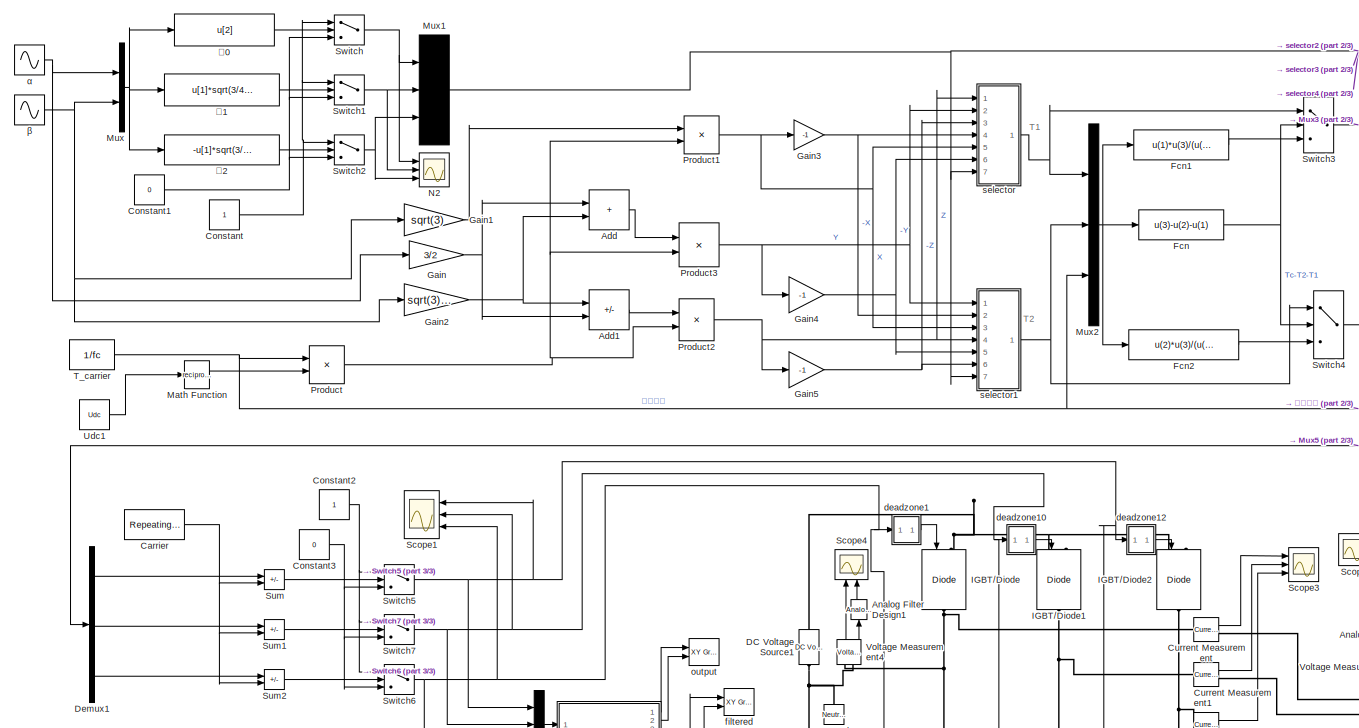
[diagram: root canvas - part 1/3, central region]
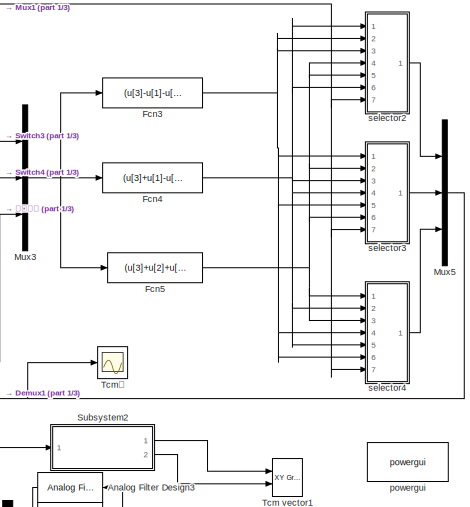
[diagram: root canvas - part 2/3, top right region]
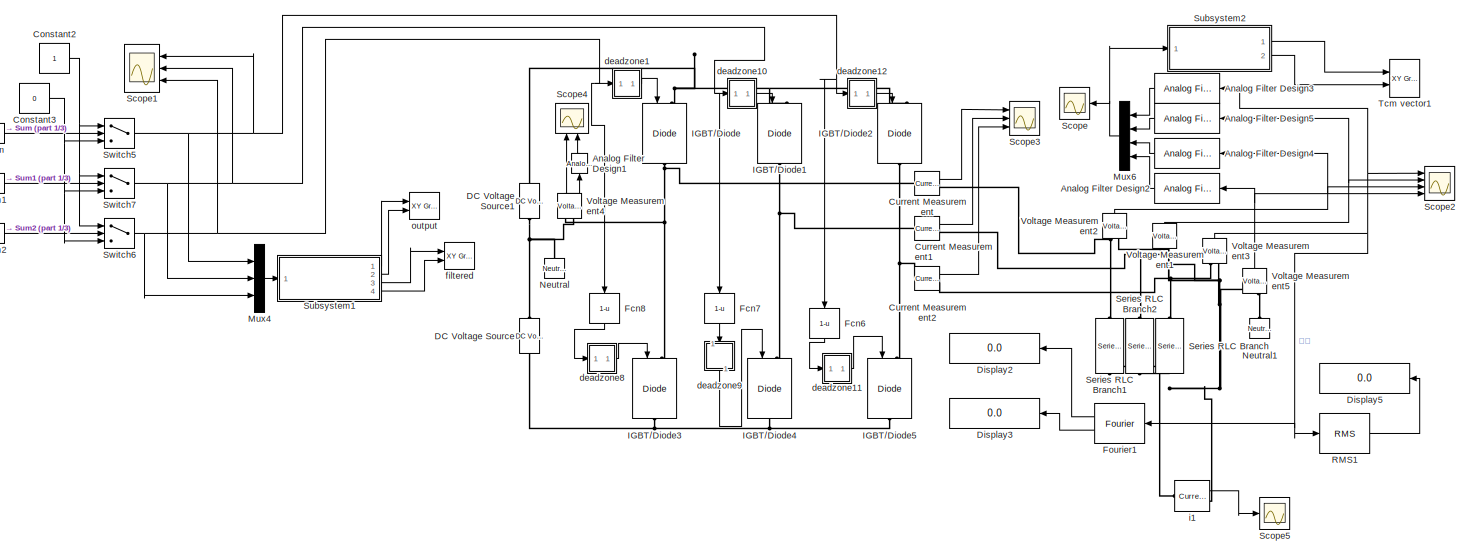
[diagram: root canvas - part 3/3, full width, bottom band]
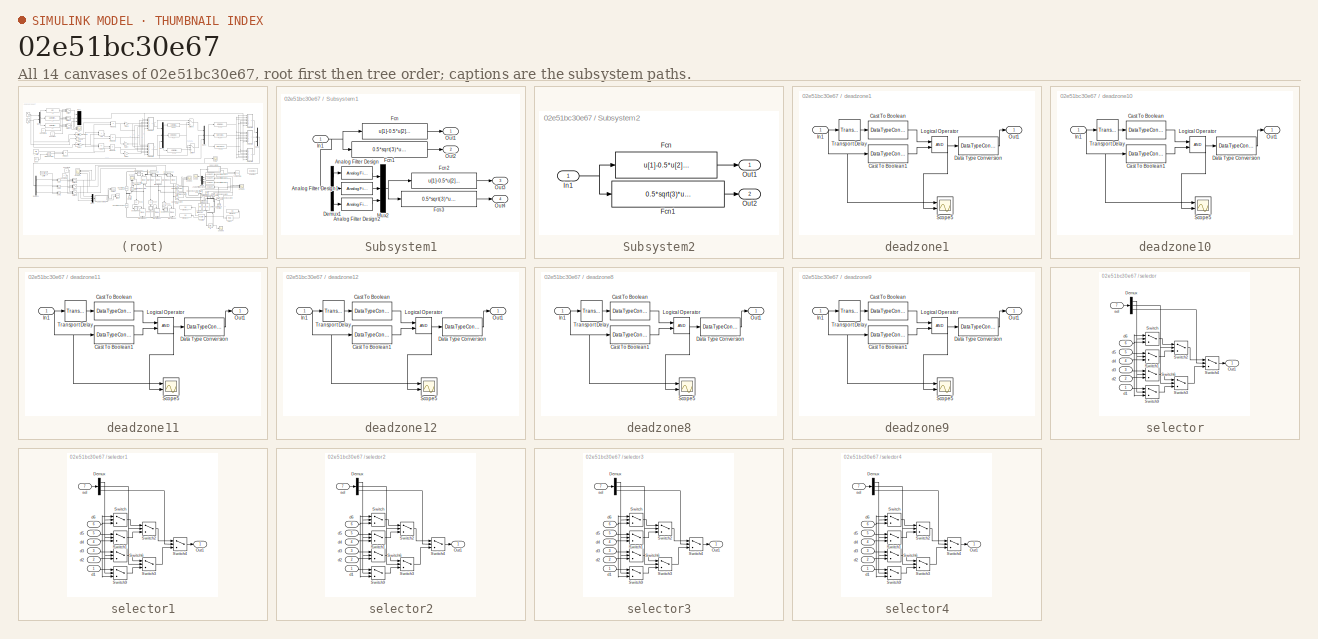
[diagram: thumbnail index - all 14 canvases of the model, root first then tree order]
MODEL slx_02e51bc30e67
KIND model
CONFIG AbsTol = auto
CONFIG EnableMultiTasking = off
CONFIG FixedStep = 10e-6
CONFIG InitFcn = Ualf=250;\nUbet=250;\nf=50;\nfc=5000;\nUdc=500;\nT_dead=20e-4\n
CONFIG MaxStep = 0.00001
CONFIG MinStep = auto
CONFIG RelTol = 1e-3
CONFIG SampleTimeConstraint = Unconstrained
CONFIG Solver = ode1
CONFIG SolverName = ode1
CONFIG StartTime = 0.0
CONFIG StopTime = 0.05
BLOCK [Sum] Add
  IconShape = rectangular
  Ports = [2, 1]
BLOCK [Sum] Add1
  IconShape = rectangular
  Inputs = +-
  Ports = [2, 1]
BLOCK [Reference] Analog Filter Design1  REF=dsparch4/Analog
Filter Design
  NameLocation = left
  Ports = [1, 1]
  SourceBlock = dsparch4/Analog\nFilter Design
  SourceProductBaseCode = DS
  SourceType = Analog Filter Design
BLOCK [Reference] Analog Filter Design2  REF=dsparch4/Analog
Filter Design
  Ports = [1, 1]
  SourceBlock = dsparch4/Analog\nFilter Design
  SourceProductBaseCode = DS
  SourceType = Analog Filter Design
BLOCK [Reference] Analog Filter Design3  REF=dsparch4/Analog
Filter Design
  Ports = [1, 1]
  SourceBlock = dsparch4/Analog\nFilter Design
  SourceProductBaseCode = DS
  SourceType = Analog Filter Design
BLOCK [Reference] Analog Filter Design4  REF=dsparch4/Analog
Filter Design
  Ports = [1, 1]
  SourceBlock = dsparch4/Analog\nFilter Design
  SourceProductBaseCode = DS
  SourceType = Analog Filter Design
BLOCK [Reference] Analog Filter Design5  REF=dsparch4/Analog
Filter Design
  Ports = [1, 1]
  SourceBlock = dsparch4/Analog\nFilter Design
  SourceProductBaseCode = DS
  SourceType = Analog Filter Design
BLOCK [Reference] Carrier   REF=simulink/Sources/Repeating
Sequence
  Ports = [0, 1]
  SourceBlock = simulink/Sources/Repeating\nSequence
  SourceProductBaseCode = SL
  SourceType = Repeating table
BLOCK [Constant] Constant
BLOCK [Constant] Constant1
  Value = 0
BLOCK [Constant] Constant2
BLOCK [Constant] Constant3
  Value = 0
BLOCK [Reference] Current Measurement  REF=powerlib/Measurements/Current Measurement
  Ports = [0, 1, 0, 0, 0, 1, 1]
  SourceBlock = powerlib/Measurements/Current Measurement
  SourceProductBaseCode = PS
  SourceType = Current Measurement
  UserDataPersistent = on
BLOCK [Reference] Current Measurement1  REF=powerlib/Measurements/Current Measurement
  Ports = [0, 1, 0, 0, 0, 1, 1]
  SourceBlock = powerlib/Measurements/Current Measurement
  SourceProductBaseCode = PS
  SourceType = Current Measurement
  UserDataPersistent = on
BLOCK [Reference] Current Measurement2  REF=powerlib/Measurements/Current Measurement
  Ports = [0, 1, 0, 0, 0, 1, 1]
  SourceBlock = powerlib/Measurements/Current Measurement
  SourceProductBaseCode = PS
  SourceType = Current Measurement
  UserDataPersistent = on
BLOCK [Reference] DC Voltage Source  REF=powerlib/Electrical
Sources/DC Voltage Source
  NameLocation = right
  Ports = [0, 0, 0, 0, 0, 1, 1]
  SourceBlock = powerlib/Electrical\nSources/DC Voltage Source
  SourceProductBaseCode = PS
  SourceType = DC Voltage Source
BLOCK [Reference] DC Voltage Source1  REF=powerlib/Electrical
Sources/DC Voltage Source
  NameLocation = right
  Ports = [0, 0, 0, 0, 0, 1, 1]
  SourceBlock = powerlib/Electrical\nSources/DC Voltage Source
  SourceProductBaseCode = PS
  SourceType = DC Voltage Source
BLOCK [Demux] Demux1
  Outputs = 3
  Ports = [1, 3]
BLOCK [Display] Display2
  Decimation = 1
  Ports = [1]
BLOCK [Display] Display3
  Decimation = 1
  Ports = [1]
BLOCK [Display] Display5
  Decimation = 1
  NameLocation = top
  Ports = [1]
BLOCK [Fcn] Fcn
  Expr = u(3)-u(2)-u(1)
BLOCK [Fcn] Fcn1
  Expr = u(1)*u(3)/(u(1)+u(2))
BLOCK [Fcn] Fcn2
  Expr = u(2)*u(3)/(u(1)+u(2))
BLOCK [Fcn] Fcn3
  Expr = (u[3]-u[1]-u[2])/4
BLOCK [Fcn] Fcn4
  Expr = (u[3]+u[1]-u[2])/4
BLOCK [Fcn] Fcn5
  Expr = (u[3]+u[2]+u[1])/4
BLOCK [Fcn] Fcn6
  Expr = 1-u
  NameLocation = left
BLOCK [Fcn] Fcn7
  Expr = 1-u
  NameLocation = left
BLOCK [Fcn] Fcn8
  Expr = 1-u
  NameLocation = left
BLOCK [Reference] Fourier1  REF=powerlib_meascontrol/Measurements/Fourier
  Ports = [1, 2]
  SourceBlock = powerlib_meascontrol/Measurements/Fourier
  SourceProductBaseCode = PS
  SourceType = Fourier
BLOCK [Gain] Gain
  Gain = 3/2
BLOCK [Gain] Gain1
  Gain = sqrt(3)
BLOCK [Gain] Gain2
  Gain = sqrt(3)/2
BLOCK [Gain] Gain3
  Gain = -1
BLOCK [Gain] Gain4
  Gain = -1
BLOCK [Gain] Gain5
  Gain = -1
BLOCK [Reference] IGBT//Diode  REF=powerlib/Power
Electronics/IGBT//Diode
  NameLocation = left
  Ports = [1, 0, 0, 0, 0, 1, 1]
  SourceBlock = powerlib/Power\nElectronics/IGBT//Diode
  SourceProductBaseCode = PS
  SourceType = IGBT/Diode
BLOCK [Reference] IGBT//Diode1  REF=powerlib/Power
Electronics/IGBT//Diode
  NameLocation = left
  Ports = [1, 0, 0, 0, 0, 1, 1]
  SourceBlock = powerlib/Power\nElectronics/IGBT//Diode
  SourceProductBaseCode = PS
  SourceType = IGBT/Diode
BLOCK [Reference] IGBT//Diode2  REF=powerlib/Power
Electronics/IGBT//Diode
  NameLocation = left
  Ports = [1, 0, 0, 0, 0, 1, 1]
  SourceBlock = powerlib/Power\nElectronics/IGBT//Diode
  SourceProductBaseCode = PS
  SourceType = IGBT/Diode
BLOCK [Reference] IGBT//Diode3  REF=powerlib/Power
Electronics/IGBT//Diode
  NameLocation = left
  Ports = [1, 0, 0, 0, 0, 1, 1]
  SourceBlock = powerlib/Power\nElectronics/IGBT//Diode
  SourceProductBaseCode = PS
  SourceType = IGBT/Diode
BLOCK [Reference] IGBT//Diode4  REF=powerlib/Power
Electronics/IGBT//Diode
  NameLocation = left
  Ports = [1, 0, 0, 0, 0, 1, 1]
  SourceBlock = powerlib/Power\nElectronics/IGBT//Diode
  SourceProductBaseCode = PS
  SourceType = IGBT/Diode
BLOCK [Reference] IGBT//Diode5  REF=powerlib/Power
Electronics/IGBT//Diode
  NameLocation = left
  Ports = [1, 0, 0, 0, 0, 1, 1]
  SourceBlock = powerlib/Power\nElectronics/IGBT//Diode
  SourceProductBaseCode = PS
  SourceType = IGBT/Diode
BLOCK [Math] Math Function
  Operator = reciprocal
  Ports = [1, 1]
  SignedPower = on
BLOCK [Mux] Mux
  Inputs = 2
  Ports = [2, 1]
BLOCK [Mux] Mux1
  Inputs = 3
  Ports = [3, 1]
BLOCK [Mux] Mux2
  DisplayOption = bar
  Inputs = 3
  Ports = [3, 1]
BLOCK [Mux] Mux3
  DisplayOption = bar
  Inputs = 3
  Ports = [3, 1]
BLOCK [Mux] Mux4
  DisplayOption = bar
  Inputs = 3
  Ports = [3, 1]
BLOCK [Mux] Mux5
  DisplayOption = bar
  Inputs = 3
  Ports = [3, 1]
BLOCK [Mux] Mux6
  DisplayOption = bar
  NameLocation = top
  Ports = [4, 1]
BLOCK [Scope] N2
  Floating = off
  NumInputPorts = 3
  Ports = [3]
  ScopeSpecificationString = Simulink.scopes.TimeScopeBlockCfg('CurrentConfiguration', extmgr.ConfigurationSet(extmgr.Configuration('Core','General UI',true,'FigureColor',[1 1 1]),extmgr.Configuration('Core','Source UI',true),extmgr.Configuration('Sources','WiredSimulink',true,'DataLoggingVariableName','ScopeData1','DataLoggingSaveFormat','StructureWithTime','SampleTime','0','DataLoggingDecimation','1','DataLoggingDecimateDat...<+3215ch>
BLOCK [Reference] Neutral  REF=powerlib/Elements/Neutral
  AttributesFormatString = node %<NodeNumber>
  NameLocation = right
  Ports = [0, 0, 0, 0, 0, 1]
  SourceBlock = powerlib/Elements/Neutral
  SourceProductBaseCode = PS
  SourceType = Neutral
BLOCK [Reference] Neutral1  REF=powerlib/Elements/Neutral
  AttributesFormatString = node %<NodeNumber>
  NameLocation = right
  Ports = [0, 0, 0, 0, 0, 1]
  SourceBlock = powerlib/Elements/Neutral
  SourceProductBaseCode = PS
  SourceType = Neutral
BLOCK [Product] Product
  Ports = [2, 1]
  RndMeth = Zero
BLOCK [Product] Product1
  Ports = [2, 1]
  RndMeth = Zero
BLOCK [Product] Product2
  Ports = [2, 1]
  RndMeth = Zero
BLOCK [Product] Product3
  Ports = [2, 1]
  RndMeth = Zero
BLOCK [Reference] RMS1  REF=powerlib_meascontrol/Measurements/RMS
  Ports = [1, 1]
  SourceBlock = powerlib_meascontrol/Measurements/RMS
  SourceProductBaseCode = PS
  SourceType = RMS
BLOCK [Scope] Scope
  Floating = off
  NameLocation = top
  NumInputPorts = 1
  Ports = [1]
  ScopeSpecificationString = Simulink.scopes.TimeScopeBlockCfg('CurrentConfiguration', extmgr.ConfigurationSet(extmgr.Configuration('Core','General UI',true,'FigureColor',[1 1 1]),extmgr.Configuration('Core','Source UI',true),extmgr.Configuration('Sources','WiredSimulink',true,'DataLoggingVariableName','output','DataLogging',true,'DataLoggingSaveFormat','StructureWithTime'),extmgr.Configuration('Visuals','Time Domain',true,'S...<+1920ch>
BLOCK [Scope] Scope1
  Floating = off
  NameLocation = top
  NumInputPorts = 3
  Ports = [3]
  ScopeSpecificationString = Simulink.scopes.TimeScopeBlockCfg('CurrentConfiguration', extmgr.ConfigurationSet(extmgr.Configuration('Core','General UI',true,'FigureColor',[1 1 1]),extmgr.Configuration('Core','Source UI',true),extmgr.Configuration('Sources','WiredSimulink',true,'DataLoggingVariableName','ScopeData2'),extmgr.Configuration('Visuals','Time Domain',true,'SerializedDisplays',{struct('MinYLimReal','-0.125','MaxYLimR...<+3913ch>
BLOCK [Scope] Scope2
  Floating = off
  NumInputPorts = 4
  Ports = [4]
  ScopeSpecificationString = Simulink.scopes.TimeScopeBlockCfg('CurrentConfiguration', extmgr.ConfigurationSet(extmgr.Configuration('Core','General UI',true,'FigureColor',[1 1 1]),extmgr.Configuration('Core','Source UI',true),extmgr.Configuration('Sources','WiredSimulink',true,'DataLoggingVariableName','Uout_lines','DataLogging',true,'DataLoggingSaveFormat','StructureWithTime'),extmgr.Configuration('Visuals','Time Domain',tru...<+4185ch>
BLOCK [Scope] Scope3
  Floating = off
  NumInputPorts = 3
  Ports = [3]
  ScopeSpecificationString = Simulink.scopes.TimeScopeBlockCfg('CurrentConfiguration', extmgr.ConfigurationSet(extmgr.Configuration('Core','General UI',true,'FigureColor',[1 1 1]),extmgr.Configuration('Core','Source UI',true),extmgr.Configuration('Sources','WiredSimulink',true,'DataLoggingVariableName','ScopeData1'),extmgr.Configuration('Visuals','Time Domain',true,'SerializedDisplays',{struct('MinYLimReal','-32.01719','MaxYL...<+3114ch>
BLOCK [Scope] Scope4
  Floating = off
  NameLocation = right
  NumInputPorts = 2
  Ports = [2]
  ScopeSpecificationString = Simulink.scopes.TimeScopeBlockCfg('CurrentConfiguration', extmgr.ConfigurationSet(extmgr.Configuration('Core','General UI',true,'FigureColor',[1 1 1]),extmgr.Configuration('Core','Source UI',true),extmgr.Configuration('Sources','WiredSimulink',true,'DataLoggingVariableName','Uu','DataLogging',true),extmgr.Configuration('Visuals','Time Domain',true,'SerializedDisplays',{struct('MinYLimReal','-312.5...<+2426ch>
BLOCK [Scope] Scope5
  Floating = off
  NumInputPorts = 1
  Ports = [1]
  ScopeSpecificationString = Simulink.scopes.TimeScopeBlockCfg('CurrentConfiguration', extmgr.ConfigurationSet(extmgr.Configuration('Core','General UI',true),extmgr.Configuration('Core','Source UI',true),extmgr.Configuration('Sources','WiredSimulink',true,'DataLoggingVariableName','ScopeData1'),extmgr.Configuration('Visuals','Time Domain',true,'SerializedDisplays',{struct('MinYLimReal','-21.40431','MaxYLimReal','21.43362','YL...<+1397ch>
BLOCK [Reference] Series RLC Branch  REF=powerlib/Elements/Series RLC Branch
  NameLocation = left
  Ports = [0, 0, 0, 0, 0, 1, 1]
  SourceBlock = powerlib/Elements/Series RLC Branch
  SourceProductBaseCode = PS
  SourceType = Series RLC Branch
BLOCK [Reference] Series RLC Branch1  REF=powerlib/Elements/Series RLC Branch
  NameLocation = left
  Ports = [0, 0, 0, 0, 0, 1, 1]
  SourceBlock = powerlib/Elements/Series RLC Branch
  SourceProductBaseCode = PS
  SourceType = Series RLC Branch
BLOCK [Reference] Series RLC Branch2  REF=powerlib/Elements/Series RLC Branch
  NameLocation = left
  Ports = [0, 0, 0, 0, 0, 1, 1]
  SourceBlock = powerlib/Elements/Series RLC Branch
  SourceProductBaseCode = PS
  SourceType = Series RLC Branch
BLOCK [SubSystem] Subsystem1
  Ports = [1, 4]
  RequestExecContextInheritance = off
BLOCK [Reference] Subsystem1/Analog Filter Design  REF=dsparch4/Analog
Filter Design
  Ports = [1, 1]
  SourceBlock = dsparch4/Analog\nFilter Design
  SourceProductBaseCode = DS
  SourceType = Analog Filter Design
BLOCK [Reference] Subsystem1/Analog Filter Design1  REF=dsparch4/Analog
Filter Design
  Ports = [1, 1]
  SourceBlock = dsparch4/Analog\nFilter Design
  SourceProductBaseCode = DS
  SourceType = Analog Filter Design
BLOCK [Reference] Subsystem1/Analog Filter Design2  REF=dsparch4/Analog
Filter Design
  Ports = [1, 1]
  SourceBlock = dsparch4/Analog\nFilter Design
  SourceProductBaseCode = DS
  SourceType = Analog Filter Design
BLOCK [Demux] Subsystem1/Demux1
  Outputs = 3
  Ports = [1, 3]
BLOCK [Fcn] Subsystem1/Fcn
  Expr = u[1]-0.5*u[2]-0.5*u[3]
BLOCK [Fcn] Subsystem1/Fcn1
  Expr = 0.5*sqrt(3)*u[2]-0.5*sqrt(3)*u[3]
BLOCK [Fcn] Subsystem1/Fcn2
  Expr = u[1]-0.5*u[2]-0.5*u[3]
BLOCK [Fcn] Subsystem1/Fcn3
  Expr = 0.5*sqrt(3)*u[2]-0.5*sqrt(3)*u[3]
BLOCK [Inport] Subsystem1/In1
BLOCK [Mux] Subsystem1/Mux2
  DisplayOption = bar
  Inputs = 3
  Ports = [3, 1]
BLOCK [Outport] Subsystem1/Out1
  VectorParamsAs1DForOutWhenUnconnected = off
BLOCK [Outport] Subsystem1/Out2
  Port = 2
  VectorParamsAs1DForOutWhenUnconnected = off
BLOCK [Outport] Subsystem1/Out3
  Port = 3
  VectorParamsAs1DForOutWhenUnconnected = off
BLOCK [Outport] Subsystem1/Out4
  Port = 4
  VectorParamsAs1DForOutWhenUnconnected = off
BLOCK [SubSystem] Subsystem2
  Ports = [1, 2]
  RequestExecContextInheritance = off
BLOCK [Fcn] Subsystem2/Fcn
  Expr = u[1]-0.5*u[2]-0.5*u[3]
BLOCK [Fcn] Subsystem2/Fcn1
  Expr = 0.5*sqrt(3)*u[2]-0.5*sqrt(3)*u[3]
BLOCK [Inport] Subsystem2/In1
BLOCK [Outport] Subsystem2/Out1
  VectorParamsAs1DForOutWhenUnconnected = off
BLOCK [Outport] Subsystem2/Out2
  Port = 2
  VectorParamsAs1DForOutWhenUnconnected = off
BLOCK [Sum] Sum
  IconShape = rectangular
  Inputs = -+
  Ports = [2, 1]
  SaturateOnIntegerOverflow = on
BLOCK [Sum] Sum1
  IconShape = rectangular
  Inputs = -+
  Ports = [2, 1]
  SaturateOnIntegerOverflow = on
BLOCK [Sum] Sum2
  IconShape = rectangular
  Inputs = -+
  Ports = [2, 1]
  SaturateOnIntegerOverflow = on
BLOCK [Switch] Switch
  InputSameDT = off
  SaturateOnIntegerOverflow = off
BLOCK [Switch] Switch1
  InputSameDT = off
  SaturateOnIntegerOverflow = off
BLOCK [Switch] Switch2
  InputSameDT = off
  SaturateOnIntegerOverflow = off
BLOCK [Switch] Switch3
  InputSameDT = off
  SaturateOnIntegerOverflow = off
BLOCK [Switch] Switch4
  Criteria = u2 > Threshold
  InputSameDT = off
  SaturateOnIntegerOverflow = off
BLOCK [Switch] Switch5
  InputSameDT = off
BLOCK [Switch] Switch6
  InputSameDT = off
BLOCK [Switch] Switch7
  InputSameDT = off
BLOCK [Constant] T_carrier
  Value = 1/fc
BLOCK [Reference] Tcm vector1  REF=simulink/Sinks/XY Graph
  Ports = [2]
  SourceBlock = simulink/Sinks/XY Graph
  SourceProductBaseCode = SL
  SourceType = XY scope.
BLOCK [Scope] Tcm。
  Floating = off
  NumInputPorts = 1
  Ports = [1]
  ScopeSpecificationString = Simulink.scopes.TimeScopeBlockCfg('CurrentConfiguration', extmgr.ConfigurationSet(extmgr.Configuration('Core','General UI',true,'FigureColor',[1 1 1]),extmgr.Configuration('Core','Source UI',true),extmgr.Configuration('Sources','WiredSimulink',true,'DataLogging',true,'DataLoggingVariableName','Tcm_3','DataLoggingSaveFormat','StructureWithTime','SampleTime','0','DataLoggingDecimation','1','DataLogg...<+1816ch>
BLOCK [Constant] Udc1
  Value = Udc
BLOCK [Reference] Voltage Measurement1  REF=powerlib/Measurements/Voltage Measurement
  NameLocation = right
  Ports = [0, 1, 0, 0, 0, 2]
  SourceBlock = powerlib/Measurements/Voltage Measurement
  SourceProductBaseCode = PS
  SourceType = Voltage Measurement
  UserDataPersistent = on
BLOCK [Reference] Voltage Measurement2  REF=powerlib/Measurements/Voltage Measurement
  NameLocation = right
  Ports = [0, 1, 0, 0, 0, 2]
  SourceBlock = powerlib/Measurements/Voltage Measurement
  SourceProductBaseCode = PS
  SourceType = Voltage Measurement
  UserDataPersistent = on
BLOCK [Reference] Voltage Measurement3  REF=powerlib/Measurements/Voltage Measurement
  NameLocation = right
  Ports = [0, 1, 0, 0, 0, 2]
  SourceBlock = powerlib/Measurements/Voltage Measurement
  SourceProductBaseCode = PS
  SourceType = Voltage Measurement
  UserDataPersistent = on
BLOCK [Reference] Voltage Measurement4  REF=powerlib/Measurements/Voltage Measurement
  NameLocation = right
  Ports = [0, 1, 0, 0, 0, 2]
  SourceBlock = powerlib/Measurements/Voltage Measurement
  SourceProductBaseCode = PS
  SourceType = Voltage Measurement
  UserDataPersistent = on
BLOCK [Reference] Voltage Measurement5  REF=powerlib/Measurements/Voltage Measurement
  NameLocation = right
  Ports = [0, 1, 0, 0, 0, 2]
  SourceBlock = powerlib/Measurements/Voltage Measurement
  SourceProductBaseCode = PS
  SourceType = Voltage Measurement
  UserDataPersistent = on
BLOCK [SubSystem] deadzone1
  Ports = [1, 1]
  RequestExecContextInheritance = off
BLOCK [DataTypeConversion] deadzone1/Cast To Boolean
  OutDataTypeStr = boolean
  RndMeth = Floor
  SaturateOnIntegerOverflow = off
BLOCK [DataTypeConversion] deadzone1/Cast To Boolean1
  OutDataTypeStr = boolean
  RndMeth = Floor
  SaturateOnIntegerOverflow = off
BLOCK [DataTypeConversion] deadzone1/Data Type Conversion
  OutDataTypeStr = double
  RndMeth = Floor
  SaturateOnIntegerOverflow = off
BLOCK [Inport] deadzone1/In1
BLOCK [Logic] deadzone1/Logical Operator
  AllPortsSameDT = off
  OutDataTypeStr = boolean
  Ports = [2, 1]
BLOCK [Outport] deadzone1/Out1
  VectorParamsAs1DForOutWhenUnconnected = off
BLOCK [Scope] deadzone1/Scope5
  Floating = off
  NumInputPorts = 2
  Ports = [2]
  ScopeSpecificationString = Simulink.scopes.TimeScopeBlockCfg('CurrentConfiguration', extmgr.ConfigurationSet(extmgr.Configuration('Core','General UI',true),extmgr.Configuration('Core','Source UI',true),extmgr.Configuration('Sources','WiredSimulink',true,'DataLoggingVariableName','ScopeData2'),extmgr.Configuration('Visuals','Time Domain',true,'SerializedDisplays',{struct('MinYLimReal','-0.125','MaxYLimReal','1.125','YLabelRe...<+2090ch>  <repeated x6 — deduplicated; at blocks: Scope5>
BLOCK [TransportDelay] deadzone1/Transport Delay
  DelayTime = T_dead
  Ports = [1, 1]
BLOCK [SubSystem] deadzone10
  Ports = [1, 1]
  RequestExecContextInheritance = off
BLOCK [DataTypeConversion] deadzone10/Cast To Boolean
  OutDataTypeStr = boolean
  RndMeth = Floor
  SaturateOnIntegerOverflow = off
BLOCK [DataTypeConversion] deadzone10/Cast To Boolean1
  OutDataTypeStr = boolean
  RndMeth = Floor
  SaturateOnIntegerOverflow = off
BLOCK [DataTypeConversion] deadzone10/Data Type Conversion
  OutDataTypeStr = double
  RndMeth = Floor
  SaturateOnIntegerOverflow = off
BLOCK [Inport] deadzone10/In1
BLOCK [Logic] deadzone10/Logical Operator
  AllPortsSameDT = off
  OutDataTypeStr = boolean
  Ports = [2, 1]
BLOCK [Outport] deadzone10/Out1
  VectorParamsAs1DForOutWhenUnconnected = off
BLOCK [Scope] deadzone10/Scope5
  Floating = off
  NumInputPorts = 2
  Ports = [2]
BLOCK [TransportDelay] deadzone10/Transport Delay
  DelayTime = T_dead
  Ports = [1, 1]
BLOCK [SubSystem] deadzone11
  Ports = [1, 1]
  RequestExecContextInheritance = off
BLOCK [DataTypeConversion] deadzone11/Cast To Boolean
  OutDataTypeStr = boolean
  RndMeth = Floor
  SaturateOnIntegerOverflow = off
BLOCK [DataTypeConversion] deadzone11/Cast To Boolean1
  OutDataTypeStr = boolean
  RndMeth = Floor
  SaturateOnIntegerOverflow = off
BLOCK [DataTypeConversion] deadzone11/Data Type Conversion
  OutDataTypeStr = double
  RndMeth = Floor
  SaturateOnIntegerOverflow = off
BLOCK [Inport] deadzone11/In1
BLOCK [Logic] deadzone11/Logical Operator
  AllPortsSameDT = off
  OutDataTypeStr = boolean
  Ports = [2, 1]
BLOCK [Outport] deadzone11/Out1
  VectorParamsAs1DForOutWhenUnconnected = off
BLOCK [Scope] deadzone11/Scope5
  Floating = off
  NumInputPorts = 2
  Ports = [2]
BLOCK [TransportDelay] deadzone11/Transport Delay
  DelayTime = T_dead
  Ports = [1, 1]
BLOCK [SubSystem] deadzone12
  Ports = [1, 1]
  RequestExecContextInheritance = off
BLOCK [DataTypeConversion] deadzone12/Cast To Boolean
  OutDataTypeStr = boolean
  RndMeth = Floor
  SaturateOnIntegerOverflow = off
BLOCK [DataTypeConversion] deadzone12/Cast To Boolean1
  OutDataTypeStr = boolean
  RndMeth = Floor
  SaturateOnIntegerOverflow = off
BLOCK [DataTypeConversion] deadzone12/Data Type Conversion
  OutDataTypeStr = double
  RndMeth = Floor
  SaturateOnIntegerOverflow = off
BLOCK [Inport] deadzone12/In1
BLOCK [Logic] deadzone12/Logical Operator
  AllPortsSameDT = off
  OutDataTypeStr = boolean
  Ports = [2, 1]
BLOCK [Outport] deadzone12/Out1
  VectorParamsAs1DForOutWhenUnconnected = off
BLOCK [Scope] deadzone12/Scope5
  Floating = off
  NumInputPorts = 2
  Ports = [2]
BLOCK [TransportDelay] deadzone12/Transport Delay
  DelayTime = T_dead
  Ports = [1, 1]
BLOCK [SubSystem] deadzone8
  Ports = [1, 1]
  RequestExecContextInheritance = off
BLOCK [DataTypeConversion] deadzone8/Cast To Boolean
  OutDataTypeStr = boolean
  RndMeth = Floor
  SaturateOnIntegerOverflow = off
BLOCK [DataTypeConversion] deadzone8/Cast To Boolean1
  OutDataTypeStr = boolean
  RndMeth = Floor
  SaturateOnIntegerOverflow = off
BLOCK [DataTypeConversion] deadzone8/Data Type Conversion
  OutDataTypeStr = double
  RndMeth = Floor
  SaturateOnIntegerOverflow = off
BLOCK [Inport] deadzone8/In1
BLOCK [Logic] deadzone8/Logical Operator
  AllPortsSameDT = off
  OutDataTypeStr = boolean
  Ports = [2, 1]
BLOCK [Outport] deadzone8/Out1
  VectorParamsAs1DForOutWhenUnconnected = off
BLOCK [Scope] deadzone8/Scope5
  Floating = off
  NumInputPorts = 2
  Ports = [2]
BLOCK [TransportDelay] deadzone8/Transport Delay
  DelayTime = T_dead
  Ports = [1, 1]
BLOCK [SubSystem] deadzone9
  NameLocation = left
  Ports = [1, 1]
  RequestExecContextInheritance = off
BLOCK [DataTypeConversion] deadzone9/Cast To Boolean
  OutDataTypeStr = boolean
  RndMeth = Floor
  SaturateOnIntegerOverflow = off
BLOCK [DataTypeConversion] deadzone9/Cast To Boolean1
  OutDataTypeStr = boolean
  RndMeth = Floor
  SaturateOnIntegerOverflow = off
BLOCK [DataTypeConversion] deadzone9/Data Type Conversion
  OutDataTypeStr = double
  RndMeth = Floor
  SaturateOnIntegerOverflow = off
BLOCK [Inport] deadzone9/In1
BLOCK [Logic] deadzone9/Logical Operator
  AllPortsSameDT = off
  OutDataTypeStr = boolean
  Ports = [2, 1]
BLOCK [Outport] deadzone9/Out1
  VectorParamsAs1DForOutWhenUnconnected = off
BLOCK [Scope] deadzone9/Scope5
  Floating = off
  NumInputPorts = 2
  Ports = [2]
BLOCK [TransportDelay] deadzone9/Transport Delay
  DelayTime = T_dead
  Ports = [1, 1]
BLOCK [Reference] filtered  REF=simulink/Sinks/XY Graph
  Ports = [2]
  SourceBlock = simulink/Sinks/XY Graph
  SourceProductBaseCode = SL
  SourceType = XY scope.
BLOCK [Reference] i1  REF=powerlib/Measurements/Current Measurement
  NameLocation = top
  Ports = [0, 1, 0, 0, 0, 1, 1]
  SourceBlock = powerlib/Measurements/Current Measurement
  SourceProductBaseCode = PS
  SourceType = Current Measurement
BLOCK [Reference] output  REF=simulink/Sinks/XY Graph
  Ports = [2]
  SourceBlock = simulink/Sinks/XY Graph
  SourceProductBaseCode = SL
  SourceType = XY scope.
BLOCK [Reference] powergui  REF=powerlib/powergui
  Ports = []
  Priority = 1
  SourceBlock = powerlib/powergui
  SourceProductBaseCode = PS
  SourceType = PSB option menu block
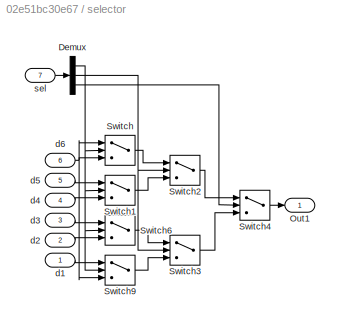
BLOCK [SubSystem] selector
  Ports = [7, 1]
  RequestExecContextInheritance = off
BLOCK [Demux] selector/Demux
  Outputs = 3
  Ports = [1, 3]
BLOCK [Outport] selector/Out1
  VectorParamsAs1DForOutWhenUnconnected = off
BLOCK [Switch] selector/Switch
  InputSameDT = off
  SaturateOnIntegerOverflow = off
  Threshold = 0.5
BLOCK [Switch] selector/Switch1
  InputSameDT = off
  SaturateOnIntegerOverflow = off
  Threshold = 0.5
BLOCK [Switch] selector/Switch2
  InputSameDT = off
  SaturateOnIntegerOverflow = off
  Threshold = 0.5
BLOCK [Switch] selector/Switch3
  InputSameDT = off
  SaturateOnIntegerOverflow = off
  Threshold = 0.5
BLOCK [Switch] selector/Switch4
  InputSameDT = off
  SaturateOnIntegerOverflow = off
  Threshold = 0.5
BLOCK [Switch] selector/Switch6
  InputSameDT = off
  SaturateOnIntegerOverflow = off
  Threshold = 0.5
BLOCK [Switch] selector/Switch9
  InputSameDT = off
  SaturateOnIntegerOverflow = off
  Threshold = 0.5
BLOCK [Inport] selector/d1
BLOCK [Inport] selector/d2
  Port = 2
BLOCK [Inport] selector/d3
  Port = 3
BLOCK [Inport] selector/d4
  Port = 4
BLOCK [Inport] selector/d5
  Port = 5
BLOCK [Inport] selector/d6
  Port = 6
BLOCK [Inport] selector/sel
  Port = 7
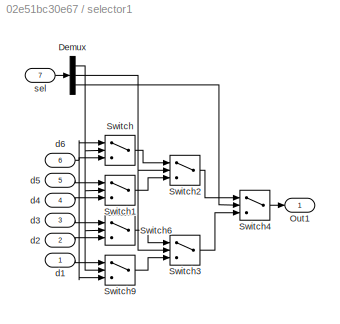
BLOCK [SubSystem] selector1
  Ports = [7, 1]
  RequestExecContextInheritance = off
BLOCK [Demux] selector1/Demux
  Outputs = 3
  Ports = [1, 3]
BLOCK [Outport] selector1/Out1
  VectorParamsAs1DForOutWhenUnconnected = off
BLOCK [Switch] selector1/Switch
  InputSameDT = off
  SaturateOnIntegerOverflow = off
  Threshold = 0.5
BLOCK [Switch] selector1/Switch1
  InputSameDT = off
  SaturateOnIntegerOverflow = off
  Threshold = 0.5
BLOCK [Switch] selector1/Switch2
  InputSameDT = off
  SaturateOnIntegerOverflow = off
  Threshold = 0.5
BLOCK [Switch] selector1/Switch3
  InputSameDT = off
  SaturateOnIntegerOverflow = off
  Threshold = 0.5
BLOCK [Switch] selector1/Switch4
  InputSameDT = off
  SaturateOnIntegerOverflow = off
  Threshold = 0.5
BLOCK [Switch] selector1/Switch6
  InputSameDT = off
  SaturateOnIntegerOverflow = off
  Threshold = 0.5
BLOCK [Switch] selector1/Switch9
  InputSameDT = off
  SaturateOnIntegerOverflow = off
  Threshold = 0.5
BLOCK [Inport] selector1/d1
BLOCK [Inport] selector1/d2
  Port = 2
BLOCK [Inport] selector1/d3
  Port = 3
BLOCK [Inport] selector1/d4
  Port = 4
BLOCK [Inport] selector1/d5
  Port = 5
BLOCK [Inport] selector1/d6
  Port = 6
BLOCK [Inport] selector1/sel
  Port = 7
BLOCK [SubSystem] selector2
  Ports = [7, 1]
  RequestExecContextInheritance = off
BLOCK [Demux] selector2/Demux
  Outputs = 3
  Ports = [1, 3]
BLOCK [Outport] selector2/Out1
  VectorParamsAs1DForOutWhenUnconnected = off
BLOCK [Switch] selector2/Switch
  InputSameDT = off
  SaturateOnIntegerOverflow = off
  Threshold = 0.5
BLOCK [Switch] selector2/Switch1
  InputSameDT = off
  SaturateOnIntegerOverflow = off
  Threshold = 0.5
BLOCK [Switch] selector2/Switch2
  InputSameDT = off
  SaturateOnIntegerOverflow = off
  Threshold = 0.5
BLOCK [Switch] selector2/Switch3
  InputSameDT = off
  SaturateOnIntegerOverflow = off
  Threshold = 0.5
BLOCK [Switch] selector2/Switch4
  InputSameDT = off
  SaturateOnIntegerOverflow = off
  Threshold = 0.5
BLOCK [Switch] selector2/Switch6
  InputSameDT = off
  SaturateOnIntegerOverflow = off
  Threshold = 0.5
BLOCK [Switch] selector2/Switch9
  InputSameDT = off
  SaturateOnIntegerOverflow = off
  Threshold = 0.5
BLOCK [Inport] selector2/d1
BLOCK [Inport] selector2/d2
  Port = 2
BLOCK [Inport] selector2/d3
  Port = 3
BLOCK [Inport] selector2/d4
  Port = 4
BLOCK [Inport] selector2/d5
  Port = 5
BLOCK [Inport] selector2/d6
  Port = 6
BLOCK [Inport] selector2/sel
  Port = 7
BLOCK [SubSystem] selector3
  Ports = [7, 1]
  RequestExecContextInheritance = off
BLOCK [Demux] selector3/Demux
  Outputs = 3
  Ports = [1, 3]
BLOCK [Outport] selector3/Out1
  VectorParamsAs1DForOutWhenUnconnected = off
BLOCK [Switch] selector3/Switch
  InputSameDT = off
  SaturateOnIntegerOverflow = off
  Threshold = 0.5
BLOCK [Switch] selector3/Switch1
  InputSameDT = off
  SaturateOnIntegerOverflow = off
  Threshold = 0.5
BLOCK [Switch] selector3/Switch2
  InputSameDT = off
  SaturateOnIntegerOverflow = off
  Threshold = 0.5
BLOCK [Switch] selector3/Switch3
  InputSameDT = off
  SaturateOnIntegerOverflow = off
  Threshold = 0.5
BLOCK [Switch] selector3/Switch4
  InputSameDT = off
  SaturateOnIntegerOverflow = off
  Threshold = 0.5
BLOCK [Switch] selector3/Switch6
  InputSameDT = off
  SaturateOnIntegerOverflow = off
  Threshold = 0.5
BLOCK [Switch] selector3/Switch9
  InputSameDT = off
  SaturateOnIntegerOverflow = off
  Threshold = 0.5
BLOCK [Inport] selector3/d1
BLOCK [Inport] selector3/d2
  Port = 2
BLOCK [Inport] selector3/d3
  Port = 3
BLOCK [Inport] selector3/d4
  Port = 4
BLOCK [Inport] selector3/d5
  Port = 5
BLOCK [Inport] selector3/d6
  Port = 6
BLOCK [Inport] selector3/sel
  Port = 7
BLOCK [SubSystem] selector4
  Ports = [7, 1]
  RequestExecContextInheritance = off
BLOCK [Demux] selector4/Demux
  Outputs = 3
  Ports = [1, 3]
BLOCK [Outport] selector4/Out1
  VectorParamsAs1DForOutWhenUnconnected = off
BLOCK [Switch] selector4/Switch
  InputSameDT = off
  SaturateOnIntegerOverflow = off
  Threshold = 0.5
BLOCK [Switch] selector4/Switch1
  InputSameDT = off
  SaturateOnIntegerOverflow = off
  Threshold = 0.5
BLOCK [Switch] selector4/Switch2
  InputSameDT = off
  SaturateOnIntegerOverflow = off
  Threshold = 0.5
BLOCK [Switch] selector4/Switch3
  InputSameDT = off
  SaturateOnIntegerOverflow = off
  Threshold = 0.5
BLOCK [Switch] selector4/Switch4
  InputSameDT = off
  SaturateOnIntegerOverflow = off
  Threshold = 0.5
BLOCK [Switch] selector4/Switch6
  InputSameDT = off
  SaturateOnIntegerOverflow = off
  Threshold = 0.5
BLOCK [Switch] selector4/Switch9
  InputSameDT = off
  SaturateOnIntegerOverflow = off
  Threshold = 0.5
BLOCK [Inport] selector4/d1
BLOCK [Inport] selector4/d2
  Port = 2
BLOCK [Inport] selector4/d3
  Port = 3
BLOCK [Inport] selector4/d4
  Port = 4
BLOCK [Inport] selector4/d5
  Port = 5
BLOCK [Inport] selector4/d6
  Port = 6
BLOCK [Inport] selector4/sel
  Port = 7
BLOCK [Sin] α
  Amplitude = Ualf
  Frequency = f*2*pi
  Phase = pi/2
  Ports = [0, 1]
  SampleTime = 0
BLOCK [Sin] β
  Amplitude = Ubet
  Frequency = f*2*pi
  Ports = [0, 1]
  SampleTime = 0
BLOCK [Fcn] 扇0
  Expr = u[2]
BLOCK [Fcn] 扇1
  Expr = u[1]*sqrt(3/4)-0.5*u[2]
BLOCK [Fcn] 扇2
  Expr = -u[1]*sqrt(3/4)-0.5*u[2]
ANNOTATION (root): T1
ANNOTATION (root): T2
LINE Add1:1 -> Product2:1
LINE Add:1 -> Product3:1
LINE Analog Filter Design1:1 -> Scope4:2
LINE Analog Filter Design2:1 -> Mux6:4
LINE Analog Filter Design3:1 -> Mux6:1
LINE Analog Filter Design4:1 -> Mux6:3
LINE Analog Filter Design5:1 -> Mux6:2
NET Carrier :1 -> Sum1:2, Sum2:2, Sum:2
NET Constant1:1 -> Switch1:3, Switch2:3, Switch:3
NET Constant2:1 -> Switch5:1, Switch6:1, Switch7:1
NET Constant3:1 -> Switch5:3, Switch6:3, Switch7:3
NET Constant:1 -> Switch1:1, Switch2:1, Switch:1
LINE Current Measurement1:1 -> Scope3:2
LINE Current Measurement2:1 -> Scope3:3
LINE Current Measurement:1 -> Scope3:1
LINE Demux1:1 -> Sum:1
LINE Demux1:2 -> Sum1:1
LINE Demux1:3 -> Sum2:1
LINE Fcn1:1 -> Switch3:3
LINE Fcn2:1 -> Switch4:3
NET Fcn3:1 -> selector2:2, selector2:3, selector3:1, selector3:5, selector4:4, selector4:6
NET Fcn4:1 -> selector2:1, selector2:6, selector3:3, selector3:4, selector4:2, selector4:5
NET Fcn5:1 -> selector2:4, selector2:5, selector3:2, selector3:6, selector4:1, selector4:3
LINE Fcn6:1 -> deadzone11:1
LINE Fcn7:1 -> deadzone9:1
LINE Fcn8:1 -> deadzone8:1
NET Fcn:1 -> Switch3:2, Switch4:2
LINE Fourier1:1 -> Display2:1
LINE Fourier1:2 -> Display3:1
LINE Gain1:1 -> Product1:1
NET Gain2:1 -> Add1:1, Add:2
NET Gain3:1 -> selector1:2, selector:4
NET Gain4:1 -> selector1:5, selector:6
NET Gain5:1 -> selector1:6, selector:3
NET Gain:1 -> Add1:2, Add:1
LINE Math Function:1 -> Product:2
NET Mux1:1 -> selector1:7, selector2:7, selector3:7, selector4:7, selector:7
NET Mux2:1 -> Fcn1:1, Fcn2:1, Fcn:1
NET Mux3:1 -> Fcn3:1, Fcn4:1, Fcn5:1
LINE Mux4:1 -> Subsystem1:1
NET Mux5:1 -> Demux1:1, Tcm。:1
NET Mux6:1 -> Scope:1, Subsystem2:1
NET Mux:1 -> 扇0:1, 扇1:1, 扇2:1
NET Product1:1 -> Gain3:1, selector1:3, selector:5
NET Product2:1 -> Gain5:1, selector1:4, selector:1
NET Product3:1 -> Gain4:1, selector1:1, selector:2
NET Product:1 -> Product1:2, Product2:2, Product3:2
LINE RMS1:1 -> Display5:1
LINE Subsystem1/Analog Filter Design1:1 -> Subsystem1/Mux2:2
LINE Subsystem1/Analog Filter Design2:1 -> Subsystem1/Mux2:3
LINE Subsystem1/Analog Filter Design:1 -> Subsystem1/Mux2:1
LINE Subsystem1/Demux1:1 -> Subsystem1/Analog Filter Design:1
LINE Subsystem1/Demux1:2 -> Subsystem1/Analog Filter Design1:1
LINE Subsystem1/Demux1:3 -> Subsystem1/Analog Filter Design2:1
LINE Subsystem1/Fcn1:1 -> Subsystem1/Out2:1
LINE Subsystem1/Fcn2:1 -> Subsystem1/Out3:1
LINE Subsystem1/Fcn3:1 -> Subsystem1/Out4:1
LINE Subsystem1/Fcn:1 -> Subsystem1/Out1:1
NET Subsystem1/In1:1 -> Subsystem1/Demux1:1, Subsystem1/Fcn1:1, Subsystem1/Fcn:1
NET Subsystem1/Mux2:1 -> Subsystem1/Fcn2:1, Subsystem1/Fcn3:1
LINE Subsystem1:1 -> output:1
LINE Subsystem1:2 -> output:2
LINE Subsystem1:3 -> filtered:1
LINE Subsystem1:4 -> filtered:2
LINE Subsystem2/Fcn1:1 -> Subsystem2/Out2:1
LINE Subsystem2/Fcn:1 -> Subsystem2/Out1:1
NET Subsystem2/In1:1 -> Subsystem2/Fcn1:1, Subsystem2/Fcn:1
LINE Subsystem2:1 -> Tcm vector1:1
LINE Subsystem2:2 -> Tcm vector1:2
LINE Sum1:1 -> Switch7:2
LINE Sum2:1 -> Switch6:2
LINE Sum:1 -> Switch5:2
NET Switch1:1 -> Mux1:2, N2:2
NET Switch2:1 -> Mux1:3, N2:3
LINE Switch3:1 -> Mux3:1
LINE Switch4:1 -> Mux3:2
NET Switch5:1 -> Fcn6:1, Mux4:1, Scope1:1, deadzone12:1
NET Switch6:1 -> Fcn8:1, Mux4:3, Scope1:3, deadzone1:1
NET Switch7:1 -> Fcn7:1, Mux4:2, Scope1:2, deadzone10:1
NET Switch:1 -> Mux1:1, N2:1
NET T_carrier:1 -> Mux2:3, Mux3:3, Product:1
LINE Udc1:1 -> Math Function:1
NET Voltage Measurement1:1 -> Analog Filter Design5:1, Scope2:2
NET Voltage Measurement2:1 -> Analog Filter Design4:1, Scope2:3
NET Voltage Measurement3:1 -> Analog Filter Design3:1, Fourier1:1, RMS1:1, Scope2:1
NET Voltage Measurement4:1 -> Analog Filter Design1:1, Scope4:1
NET Voltage Measurement5:1 -> Analog Filter Design2:1, Scope2:4
LINE deadzone1/Cast To Boolean1:1 -> deadzone1/Logical Operator:2
LINE deadzone1/Cast To Boolean:1 -> deadzone1/Logical Operator:1
LINE deadzone1/Data Type Conversion:1 -> deadzone1/Out1:1
NET deadzone1/In1:1 -> deadzone1/Cast To Boolean1:1, deadzone1/Scope5:1, deadzone1/Transport Delay:1
NET deadzone1/Logical Operator:1 -> deadzone1/Data Type Conversion:1, deadzone1/Scope5:2
LINE deadzone1/Transport Delay:1 -> deadzone1/Cast To Boolean:1
LINE deadzone10/Cast To Boolean1:1 -> deadzone10/Logical Operator:2
LINE deadzone10/Cast To Boolean:1 -> deadzone10/Logical Operator:1
LINE deadzone10/Data Type Conversion:1 -> deadzone10/Out1:1
NET deadzone10/In1:1 -> deadzone10/Cast To Boolean1:1, deadzone10/Scope5:1, deadzone10/Transport Delay:1
NET deadzone10/Logical Operator:1 -> deadzone10/Data Type Conversion:1, deadzone10/Scope5:2
LINE deadzone10/Transport Delay:1 -> deadzone10/Cast To Boolean:1
LINE deadzone10:1 -> IGBT//Diode1:1
LINE deadzone11/Cast To Boolean1:1 -> deadzone11/Logical Operator:2
LINE deadzone11/Cast To Boolean:1 -> deadzone11/Logical Operator:1
LINE deadzone11/Data Type Conversion:1 -> deadzone11/Out1:1
NET deadzone11/In1:1 -> deadzone11/Cast To Boolean1:1, deadzone11/Scope5:1, deadzone11/Transport Delay:1
NET deadzone11/Logical Operator:1 -> deadzone11/Data Type Conversion:1, deadzone11/Scope5:2
LINE deadzone11/Transport Delay:1 -> deadzone11/Cast To Boolean:1
LINE deadzone11:1 -> IGBT//Diode5:1
LINE deadzone12/Cast To Boolean1:1 -> deadzone12/Logical Operator:2
LINE deadzone12/Cast To Boolean:1 -> deadzone12/Logical Operator:1
LINE deadzone12/Data Type Conversion:1 -> deadzone12/Out1:1
NET deadzone12/In1:1 -> deadzone12/Cast To Boolean1:1, deadzone12/Scope5:1, deadzone12/Transport Delay:1
NET deadzone12/Logical Operator:1 -> deadzone12/Data Type Conversion:1, deadzone12/Scope5:2
LINE deadzone12/Transport Delay:1 -> deadzone12/Cast To Boolean:1
LINE deadzone12:1 -> IGBT//Diode2:1
LINE deadzone1:1 -> IGBT//Diode:1
LINE deadzone8/Cast To Boolean1:1 -> deadzone8/Logical Operator:2
LINE deadzone8/Cast To Boolean:1 -> deadzone8/Logical Operator:1
LINE deadzone8/Data Type Conversion:1 -> deadzone8/Out1:1
NET deadzone8/In1:1 -> deadzone8/Cast To Boolean1:1, deadzone8/Scope5:1, deadzone8/Transport Delay:1
NET deadzone8/Logical Operator:1 -> deadzone8/Data Type Conversion:1, deadzone8/Scope5:2
LINE deadzone8/Transport Delay:1 -> deadzone8/Cast To Boolean:1
LINE deadzone8:1 -> IGBT//Diode3:1
LINE deadzone9/Cast To Boolean1:1 -> deadzone9/Logical Operator:2
LINE deadzone9/Cast To Boolean:1 -> deadzone9/Logical Operator:1
LINE deadzone9/Data Type Conversion:1 -> deadzone9/Out1:1
NET deadzone9/In1:1 -> deadzone9/Cast To Boolean1:1, deadzone9/Scope5:1, deadzone9/Transport Delay:1
NET deadzone9/Logical Operator:1 -> deadzone9/Data Type Conversion:1, deadzone9/Scope5:2
LINE deadzone9/Transport Delay:1 -> deadzone9/Cast To Boolean:1
LINE deadzone9:1 -> IGBT//Diode4:1
LINE i1:1 -> Scope5:1
NET selector/Demux:1 -> selector/Switch1:2, selector/Switch6:2, selector/Switch9:2, selector/Switch:2
NET selector/Demux:2 -> selector/Switch2:2, selector/Switch3:2
LINE selector/Demux:3 -> selector/Switch4:2
LINE selector/Switch1:1 -> selector/Switch2:3
LINE selector/Switch2:1 -> selector/Switch4:1
LINE selector/Switch3:1 -> selector/Switch4:3
LINE selector/Switch4:1 -> selector/Out1:1
LINE selector/Switch6:1 -> selector/Switch3:1
LINE selector/Switch9:1 -> selector/Switch3:3
LINE selector/Switch:1 -> selector/Switch2:1
LINE selector/d1:1 -> selector/Switch9:1
LINE selector/d2:1 -> selector/Switch6:3
LINE selector/d3:1 -> selector/Switch6:1
LINE selector/d4:1 -> selector/Switch1:3
LINE selector/d5:1 -> selector/Switch1:1
NET selector/d6:1 -> selector/Switch9:3, selector/Switch:1, selector/Switch:3
LINE selector/sel:1 -> selector/Demux:1
NET selector1/Demux:1 -> selector1/Switch1:2, selector1/Switch6:2, selector1/Switch9:2, selector1/Switch:2
NET selector1/Demux:2 -> selector1/Switch2:2, selector1/Switch3:2
LINE selector1/Demux:3 -> selector1/Switch4:2
LINE selector1/Switch1:1 -> selector1/Switch2:3
LINE selector1/Switch2:1 -> selector1/Switch4:1
LINE selector1/Switch3:1 -> selector1/Switch4:3
LINE selector1/Switch4:1 -> selector1/Out1:1
LINE selector1/Switch6:1 -> selector1/Switch3:1
LINE selector1/Switch9:1 -> selector1/Switch3:3
LINE selector1/Switch:1 -> selector1/Switch2:1
LINE selector1/d1:1 -> selector1/Switch9:1
LINE selector1/d2:1 -> selector1/Switch6:3
LINE selector1/d3:1 -> selector1/Switch6:1
LINE selector1/d4:1 -> selector1/Switch1:3
LINE selector1/d5:1 -> selector1/Switch1:1
NET selector1/d6:1 -> selector1/Switch9:3, selector1/Switch:1, selector1/Switch:3
LINE selector1/sel:1 -> selector1/Demux:1
NET selector1:1 -> Mux2:2, Switch4:1
NET selector2/Demux:1 -> selector2/Switch1:2, selector2/Switch6:2, selector2/Switch9:2, selector2/Switch:2
NET selector2/Demux:2 -> selector2/Switch2:2, selector2/Switch3:2
LINE selector2/Demux:3 -> selector2/Switch4:2
LINE selector2/Switch1:1 -> selector2/Switch2:3
LINE selector2/Switch2:1 -> selector2/Switch4:1
LINE selector2/Switch3:1 -> selector2/Switch4:3
LINE selector2/Switch4:1 -> selector2/Out1:1
LINE selector2/Switch6:1 -> selector2/Switch3:1
LINE selector2/Switch9:1 -> selector2/Switch3:3
LINE selector2/Switch:1 -> selector2/Switch2:1
LINE selector2/d1:1 -> selector2/Switch9:1
LINE selector2/d2:1 -> selector2/Switch6:3
LINE selector2/d3:1 -> selector2/Switch6:1
LINE selector2/d4:1 -> selector2/Switch1:3
LINE selector2/d5:1 -> selector2/Switch1:1
NET selector2/d6:1 -> selector2/Switch9:3, selector2/Switch:1, selector2/Switch:3
LINE selector2/sel:1 -> selector2/Demux:1
LINE selector2:1 -> Mux5:1
NET selector3/Demux:1 -> selector3/Switch1:2, selector3/Switch6:2, selector3/Switch9:2, selector3/Switch:2
NET selector3/Demux:2 -> selector3/Switch2:2, selector3/Switch3:2
LINE selector3/Demux:3 -> selector3/Switch4:2
LINE selector3/Switch1:1 -> selector3/Switch2:3
LINE selector3/Switch2:1 -> selector3/Switch4:1
LINE selector3/Switch3:1 -> selector3/Switch4:3
LINE selector3/Switch4:1 -> selector3/Out1:1
LINE selector3/Switch6:1 -> selector3/Switch3:1
LINE selector3/Switch9:1 -> selector3/Switch3:3
LINE selector3/Switch:1 -> selector3/Switch2:1
LINE selector3/d1:1 -> selector3/Switch9:1
LINE selector3/d2:1 -> selector3/Switch6:3
LINE selector3/d3:1 -> selector3/Switch6:1
LINE selector3/d4:1 -> selector3/Switch1:3
LINE selector3/d5:1 -> selector3/Switch1:1
NET selector3/d6:1 -> selector3/Switch9:3, selector3/Switch:1, selector3/Switch:3
LINE selector3/sel:1 -> selector3/Demux:1
LINE selector3:1 -> Mux5:2
NET selector4/Demux:1 -> selector4/Switch1:2, selector4/Switch6:2, selector4/Switch9:2, selector4/Switch:2
NET selector4/Demux:2 -> selector4/Switch2:2, selector4/Switch3:2
LINE selector4/Demux:3 -> selector4/Switch4:2
LINE selector4/Switch1:1 -> selector4/Switch2:3
LINE selector4/Switch2:1 -> selector4/Switch4:1
LINE selector4/Switch3:1 -> selector4/Switch4:3
LINE selector4/Switch4:1 -> selector4/Out1:1
LINE selector4/Switch6:1 -> selector4/Switch3:1
LINE selector4/Switch9:1 -> selector4/Switch3:3
LINE selector4/Switch:1 -> selector4/Switch2:1
LINE selector4/d1:1 -> selector4/Switch9:1
LINE selector4/d2:1 -> selector4/Switch6:3
LINE selector4/d3:1 -> selector4/Switch6:1
LINE selector4/d4:1 -> selector4/Switch1:3
LINE selector4/d5:1 -> selector4/Switch1:1
NET selector4/d6:1 -> selector4/Switch9:3, selector4/Switch:1, selector4/Switch:3
LINE selector4/sel:1 -> selector4/Demux:1
LINE selector4:1 -> Mux5:3
NET selector:1 -> Mux2:1, Switch3:1
NET α:1 -> Gain:1, Mux:1
NET β:1 -> Gain1:1, Gain2:1, Mux:2
LINE 扇0:1 -> Switch:2
LINE 扇1:1 -> Switch1:2
LINE 扇2:1 -> Switch2:2
PNET net1: Current Measurement1:LConn1 -- IGBT//Diode1:RConn1 -- IGBT//Diode4:LConn1
PNET net2: Current Measurement1:RConn1 -- Series RLC Branch2:LConn1 -- Voltage Measurement1:LConn1
PNET net3: Current Measurement2:LConn1 -- IGBT//Diode2:RConn1 -- IGBT//Diode5:LConn1
PNET net4: Current Measurement2:RConn1 -- Series RLC Branch:LConn1 -- Voltage Measurement3:LConn1
PNET net5: Current Measurement:LConn1 -- IGBT//Diode3:LConn1 -- IGBT//Diode:RConn1 -- Voltage Measurement4:LConn1
PNET net6: Current Measurement:RConn1 -- Series RLC Branch1:LConn1 -- Voltage Measurement2:LConn1
PNET net7: DC Voltage Source1:LConn1 -- DC Voltage Source:RConn1 -- Neutral:LConn1 -- Voltage Measurement4:LConn2
PNET net8: DC Voltage Source1:RConn1 -- IGBT//Diode1:LConn1 -- IGBT//Diode2:LConn1 -- IGBT//Diode:LConn1
PNET net9: DC Voltage Source:LConn1 -- IGBT//Diode3:RConn1 -- IGBT//Diode4:RConn1 -- IGBT//Diode5:RConn1
PLINE Neutral1:LConn1 -- Voltage Measurement5:LConn2
PLINE Series RLC Branch1:RConn1 -- i1:LConn1
PNET net10: Series RLC Branch2:RConn1 -- Series RLC Branch:RConn1 -- Voltage Measurement1:LConn2 -- Voltage Measurement2:LConn2 -- Voltage Measurement3:LConn2 -- Voltage Measurement5:LConn1 -- i1:RConn1
note: NET lines group one-source signal fan-out (src -> all destinations, sorted); 1:1 wires keep LINE; PNET lines group multi-terminal physical nets as a canonical sorted terminal list (undirected conserving connections); 2-terminal nets keep the pairwise PLINE form
